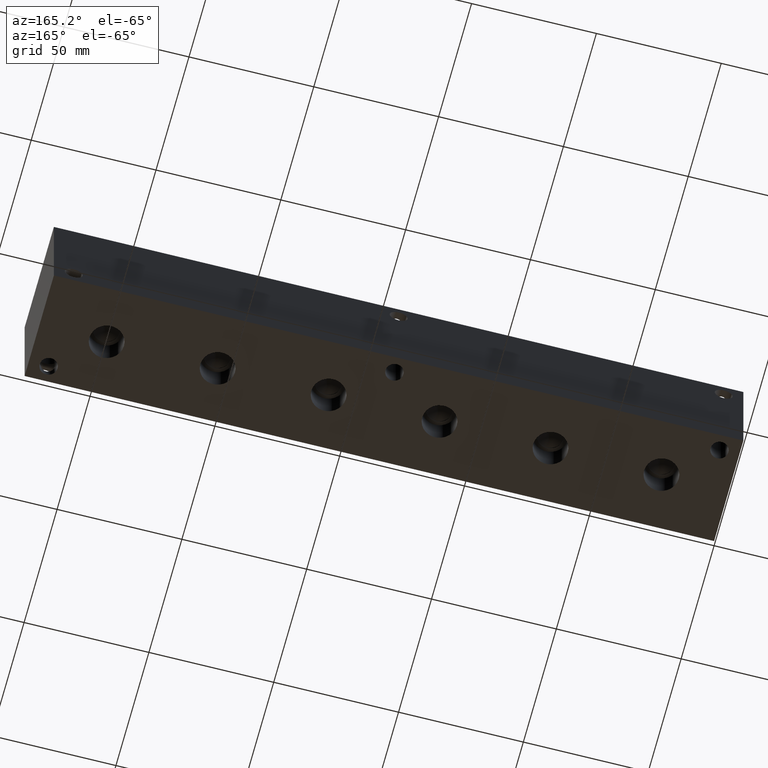
[diagram: clean part render]
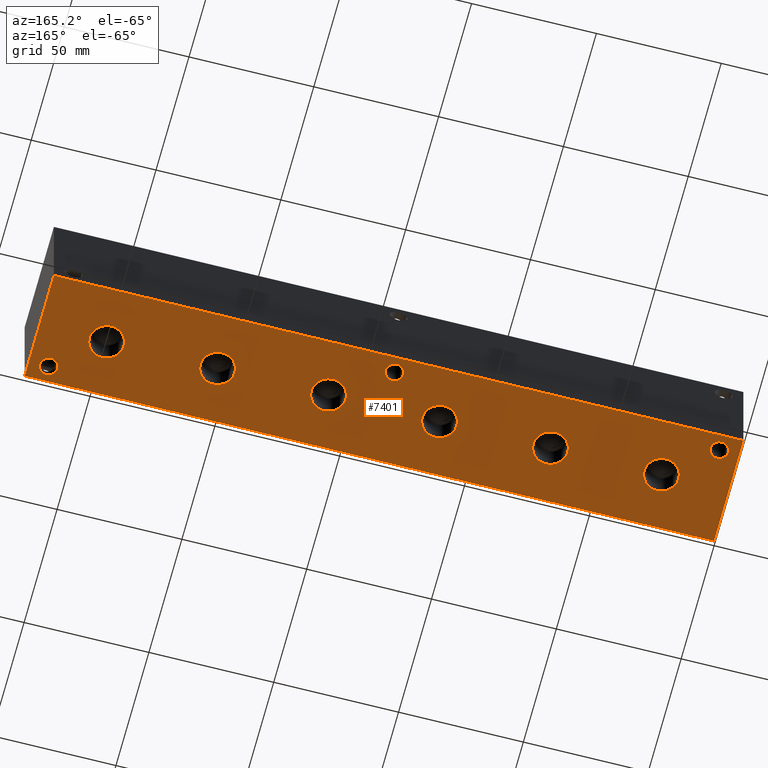
[diagram: same view with one face highlighted and labeled with its STEP entity id]
A machine part, auxiliary view. The second image highlights one B-rep face of the part: STEP entity #7401.
In plain terms, the highlighted planar face has unit normal (0, 0, 1).
Its self-contained STEP definition (entity closure, byte-faithful):
#97=CIRCLE('',#7656,6.9342);
#98=CIRCLE('',#7657,6.9342);
#104=CIRCLE('',#7667,6.9342);
#105=CIRCLE('',#7668,6.9342);
#111=CIRCLE('',#7678,6.9342);
#112=CIRCLE('',#7679,6.9342);
#118=CIRCLE('',#7689,6.9342);
#119=CIRCLE('',#7690,6.9342);
#125=CIRCLE('',#7700,6.9342);
#126=CIRCLE('',#7701,6.9342);
#132=CIRCLE('',#7711,6.9342);
#133=CIRCLE('',#7712,6.9342);
#173=CIRCLE('',#7799,3.5687);
#174=CIRCLE('',#7801,3.5687);
#175=CIRCLE('',#7803,3.5687);
#233=FACE_BOUND('',#1283,.T.);
#234=FACE_BOUND('',#1284,.T.);
#235=FACE_BOUND('',#1285,.T.);
#236=FACE_BOUND('',#1286,.T.);
#237=FACE_BOUND('',#1287,.T.);
#238=FACE_BOUND('',#1288,.T.);
#239=FACE_BOUND('',#1289,.T.);
#240=FACE_BOUND('',#1290,.T.);
#241=FACE_BOUND('',#1291,.T.);
#473=PLANE('',#7809);
#849=FACE_OUTER_BOUND('',#1282,.T.);
#1282=EDGE_LOOP('',(#6611,#6612,#6613,#6614));
#1283=EDGE_LOOP('',(#6615,#6616));
#1284=EDGE_LOOP('',(#6617,#6618));
#1285=EDGE_LOOP('',(#6619,#6620));
#1286=EDGE_LOOP('',(#6621,#6622));
#1287=EDGE_LOOP('',(#6623,#6624));
#1288=EDGE_LOOP('',(#6625,#6626));
#1289=EDGE_LOOP('',(#6627));
#1290=EDGE_LOOP('',(#6628));
#1291=EDGE_LOOP('',(#6629));
#1992=LINE('',#12620,#2700);
#1995=LINE('',#12625,#2703);
#1997=LINE('',#12629,#2705);
#1999=LINE('',#12632,#2707);
#2700=VECTOR('',#9290,10.);
#2703=VECTOR('',#9295,10.);
#2705=VECTOR('',#9299,10.);
#2707=VECTOR('',#9303,10.);
#3488=VERTEX_POINT('',#12326);
#3489=VERTEX_POINT('',#12327);
#3496=VERTEX_POINT('',#12348);
#3497=VERTEX_POINT('',#12349);
#3504=VERTEX_POINT('',#12370);
#3505=VERTEX_POINT('',#12371);
#3512=VERTEX_POINT('',#12392);
#3513=VERTEX_POINT('',#12393);
#3520=VERTEX_POINT('',#12414);
#3521=VERTEX_POINT('',#12415);
#3528=VERTEX_POINT('',#12436);
#3529=VERTEX_POINT('',#12437);
#3581=VERTEX_POINT('',#12606);
#3582=VERTEX_POINT('',#12610);
#3583=VERTEX_POINT('',#12614);
#3584=VERTEX_POINT('',#12618);
#3585=VERTEX_POINT('',#12619);
#3586=VERTEX_POINT('',#12624);
#3587=VERTEX_POINT('',#12628);
#4456=EDGE_CURVE('',#3488,#3489,#97,.T.);
#4457=EDGE_CURVE('',#3489,#3488,#98,.T.);
#4466=EDGE_CURVE('',#3496,#3497,#104,.T.);
#4467=EDGE_CURVE('',#3497,#3496,#105,.T.);
#4476=EDGE_CURVE('',#3504,#3505,#111,.T.);
#4477=EDGE_CURVE('',#3505,#3504,#112,.T.);
#4486=EDGE_CURVE('',#3512,#3513,#118,.T.);
#4487=EDGE_CURVE('',#3513,#3512,#119,.T.);
#4496=EDGE_CURVE('',#3520,#3521,#125,.T.);
#4497=EDGE_CURVE('',#3521,#3520,#126,.T.);
#4506=EDGE_CURVE('',#3528,#3529,#132,.T.);
#4507=EDGE_CURVE('',#3529,#3528,#133,.T.);
#4589=EDGE_CURVE('',#3581,#3581,#173,.T.);
#4591=EDGE_CURVE('',#3582,#3582,#174,.T.);
#4593=EDGE_CURVE('',#3583,#3583,#175,.T.);
#4594=EDGE_CURVE('',#3584,#3585,#1992,.T.);
#4597=EDGE_CURVE('',#3586,#3584,#1995,.T.);
#4599=EDGE_CURVE('',#3587,#3586,#1997,.T.);
#4601=EDGE_CURVE('',#3585,#3587,#1999,.T.);
#6611=ORIENTED_EDGE('',*,*,#4601,.F.);
#6612=ORIENTED_EDGE('',*,*,#4594,.F.);
#6613=ORIENTED_EDGE('',*,*,#4597,.F.);
#6614=ORIENTED_EDGE('',*,*,#4599,.F.);
#6615=ORIENTED_EDGE('',*,*,#4456,.T.);
#6616=ORIENTED_EDGE('',*,*,#4457,.T.);
#6617=ORIENTED_EDGE('',*,*,#4466,.T.);
#6618=ORIENTED_EDGE('',*,*,#4467,.T.);
#6619=ORIENTED_EDGE('',*,*,#4476,.T.);
#6620=ORIENTED_EDGE('',*,*,#4477,.T.);
#6621=ORIENTED_EDGE('',*,*,#4486,.T.);
#6622=ORIENTED_EDGE('',*,*,#4487,.T.);
#6623=ORIENTED_EDGE('',*,*,#4496,.T.);
#6624=ORIENTED_EDGE('',*,*,#4497,.T.);
#6625=ORIENTED_EDGE('',*,*,#4506,.T.);
#6626=ORIENTED_EDGE('',*,*,#4507,.T.);
#6627=ORIENTED_EDGE('',*,*,#4589,.T.);
#6628=ORIENTED_EDGE('',*,*,#4591,.T.);
#6629=ORIENTED_EDGE('',*,*,#4593,.T.);
#7401=ADVANCED_FACE('',(#849,#233,#234,#235,#236,#237,#238,#239,#240,#241),
#473,.F.);
#7656=AXIS2_PLACEMENT_3D('',#12328,#8945,#8946);
#7657=AXIS2_PLACEMENT_3D('',#12329,#8947,#8948);
#7667=AXIS2_PLACEMENT_3D('',#12350,#8970,#8971);
#7668=AXIS2_PLACEMENT_3D('',#12351,#8972,#8973);
#7678=AXIS2_PLACEMENT_3D('',#12372,#8995,#8996);
#7679=AXIS2_PLACEMENT_3D('',#12373,#8997,#8998);
#7689=AXIS2_PLACEMENT_3D('',#12394,#9020,#9021);
#7690=AXIS2_PLACEMENT_3D('',#12395,#9022,#9023);
#7700=AXIS2_PLACEMENT_3D('',#12416,#9045,#9046);
#7701=AXIS2_PLACEMENT_3D('',#12417,#9047,#9048);
#7711=AXIS2_PLACEMENT_3D('',#12438,#9070,#9071);
#7712=AXIS2_PLACEMENT_3D('',#12439,#9072,#9073);
#7799=AXIS2_PLACEMENT_3D('',#12608,#9276,#9277);
#7801=AXIS2_PLACEMENT_3D('',#12612,#9281,#9282);
#7803=AXIS2_PLACEMENT_3D('',#12616,#9286,#9287);
#7809=AXIS2_PLACEMENT_3D('',#12634,#9306,#9307);
#8945=DIRECTION('center_axis',(0.,0.,1.));
#8946=DIRECTION('ref_axis',(1.,0.,0.));
#8947=DIRECTION('center_axis',(0.,0.,1.));
#8948=DIRECTION('ref_axis',(1.,0.,0.));
#8970=DIRECTION('center_axis',(0.,0.,1.));
#8971=DIRECTION('ref_axis',(1.,0.,0.));
#8972=DIRECTION('center_axis',(0.,0.,1.));
#8973=DIRECTION('ref_axis',(1.,0.,0.));
#8995=DIRECTION('center_axis',(0.,0.,1.));
#8996=DIRECTION('ref_axis',(1.,0.,0.));
#8997=DIRECTION('center_axis',(0.,0.,1.));
#8998=DIRECTION('ref_axis',(1.,0.,0.));
#9020=DIRECTION('center_axis',(0.,0.,1.));
#9021=DIRECTION('ref_axis',(1.,0.,0.));
#9022=DIRECTION('center_axis',(0.,0.,1.));
#9023=DIRECTION('ref_axis',(1.,0.,0.));
#9045=DIRECTION('center_axis',(0.,0.,1.));
#9046=DIRECTION('ref_axis',(1.,0.,0.));
#9047=DIRECTION('center_axis',(0.,0.,1.));
#9048=DIRECTION('ref_axis',(1.,0.,0.));
#9070=DIRECTION('center_axis',(0.,0.,1.));
#9071=DIRECTION('ref_axis',(1.,0.,0.));
#9072=DIRECTION('center_axis',(0.,0.,1.));
#9073=DIRECTION('ref_axis',(1.,0.,0.));
#9276=DIRECTION('center_axis',(0.,0.,1.));
#9277=DIRECTION('ref_axis',(1.,0.,0.));
#9281=DIRECTION('center_axis',(0.,0.,1.));
#9282=DIRECTION('ref_axis',(1.,0.,0.));
#9286=DIRECTION('center_axis',(0.,0.,1.));
#9287=DIRECTION('ref_axis',(1.,0.,0.));
#9290=DIRECTION('',(0.,-1.,0.));
#9295=DIRECTION('',(-1.,0.,0.));
#9299=DIRECTION('',(0.,1.,0.));
#9303=DIRECTION('',(1.,0.,0.));
#9306=DIRECTION('center_axis',(0.,0.,1.));
#9307=DIRECTION('ref_axis',(1.,0.,0.));
#12326=CARTESIAN_POINT('',(211.709,22.225,0.));
#12327=CARTESIAN_POINT('',(197.8406,22.225,0.));
#12328=CARTESIAN_POINT('Origin',(204.7748,22.225,0.));
#12329=CARTESIAN_POINT('Origin',(204.7748,22.225,0.));
#12348=CARTESIAN_POINT('',(122.809,22.225,0.));
#12349=CARTESIAN_POINT('',(108.9406,22.225,0.));
#12350=CARTESIAN_POINT('Origin',(115.8748,22.225,0.));
#12351=CARTESIAN_POINT('Origin',(115.8748,22.225,0.));
#12370=CARTESIAN_POINT('',(33.909,22.225,0.));
#12371=CARTESIAN_POINT('',(20.0406,22.225,0.));
#12372=CARTESIAN_POINT('Origin',(26.9748,22.225,0.));
#12373=CARTESIAN_POINT('Origin',(26.9748,22.225,0.));
#12392=CARTESIAN_POINT('',(78.359,22.225,0.));
#12393=CARTESIAN_POINT('',(64.4906,22.225,0.));
#12394=CARTESIAN_POINT('Origin',(71.4248,22.225,0.));
#12395=CARTESIAN_POINT('Origin',(71.4248,22.225,0.));
#12414=CARTESIAN_POINT('',(167.259,22.225,0.));
#12415=CARTESIAN_POINT('',(153.3906,22.225,0.));
#12416=CARTESIAN_POINT('Origin',(160.3248,22.225,0.));
#12417=CARTESIAN_POINT('Origin',(160.3248,22.225,0.));
#12436=CARTESIAN_POINT('',(256.159,22.225,0.));
#12437=CARTESIAN_POINT('',(242.2906,22.225,0.));
#12438=CARTESIAN_POINT('Origin',(249.2248,22.225,0.));
#12439=CARTESIAN_POINT('Origin',(249.2248,22.225,0.));
#12606=CARTESIAN_POINT('',(134.5565,38.1,0.));
#12608=CARTESIAN_POINT('Origin',(138.1252,38.1,0.));
#12610=CARTESIAN_POINT('',(4.3561,38.1,0.));
#12612=CARTESIAN_POINT('Origin',(7.9248,38.1,0.));
#12614=CARTESIAN_POINT('',(264.7061,6.35,0.));
#12616=CARTESIAN_POINT('Origin',(268.2748,6.35,0.));
#12618=CARTESIAN_POINT('',(0.,44.45,0.));
#12619=CARTESIAN_POINT('',(0.,0.,0.));
#12620=CARTESIAN_POINT('',(0.,44.45,0.));
#12624=CARTESIAN_POINT('',(276.225,44.45,0.));
#12625=CARTESIAN_POINT('',(276.225,44.45,0.));
#12628=CARTESIAN_POINT('',(276.225,0.,0.));
#12629=CARTESIAN_POINT('',(276.225,0.,0.));
#12632=CARTESIAN_POINT('',(0.,0.,0.));
#12634=CARTESIAN_POINT('Origin',(138.1125,22.225,0.));